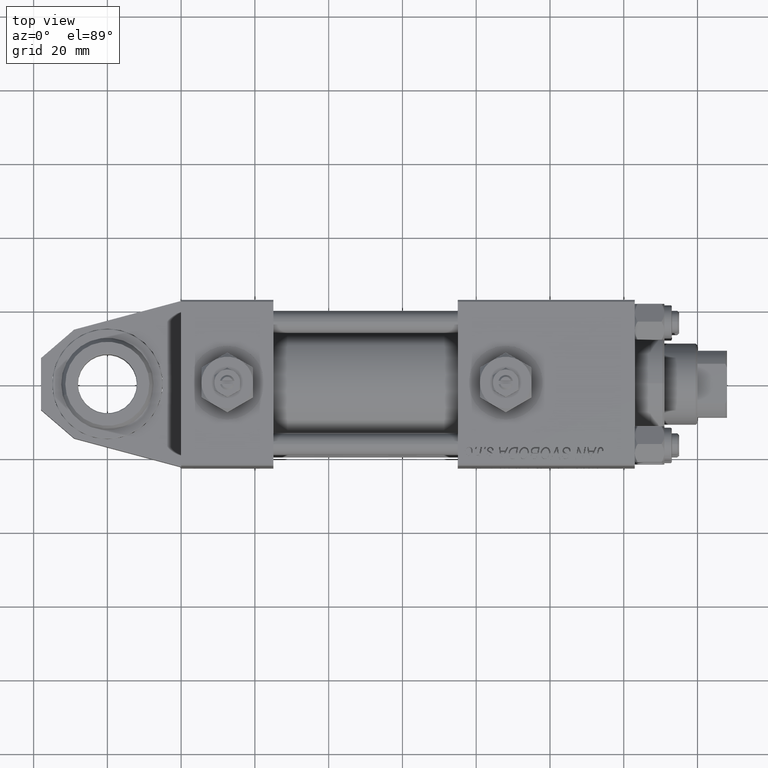
[diagram: clean part render]
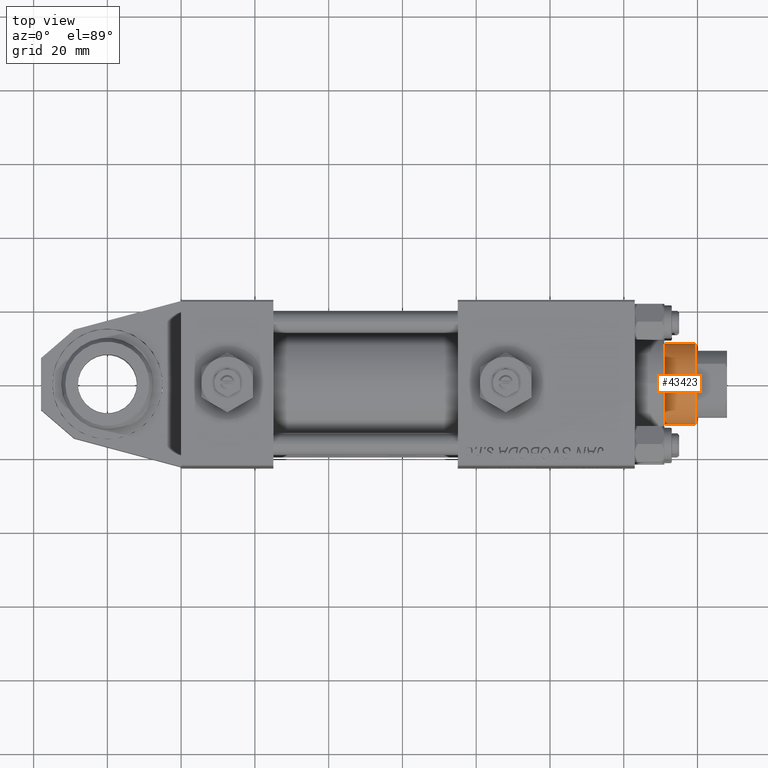
[diagram: same view with one face highlighted and labeled with its STEP entity id]
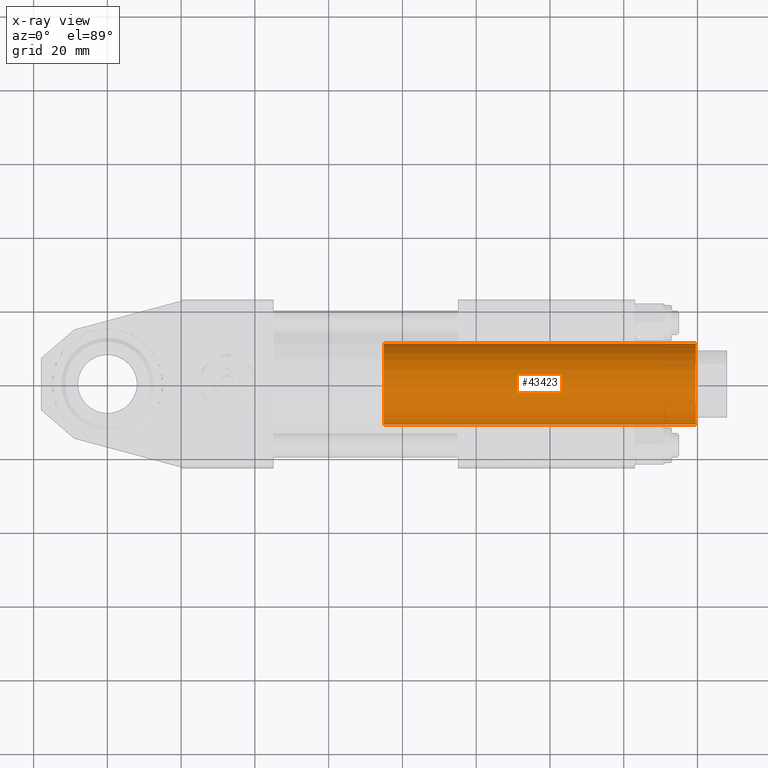
[diagram: x-ray of the same camera — body ghosted, the highlighted face saturated]
A machine part, top view. The second image highlights one B-rep face of the part: STEP entity #43423.
The next image is the same camera in x-ray: the body ghosted, the highlighted face saturated — about 1% of this face is hidden behind the body in this view.
In plain terms, the highlighted cylindrical surface (partial cylindrical patch) has radius 11 mm, axis along (-1, 0, 0).
Its self-contained STEP definition (entity closure, byte-faithful):
#620 = LINE ( 'NONE', #25411, #33642 ) ;
#1104 = CARTESIAN_POINT ( 'NONE',  ( 0.000000000000000000, 0.000000000000000000, 114.5000000000000142 ) ) ;
#1704 = DIRECTION ( 'NONE',  ( 0.000000000000000000, 0.000000000000000000, 1.000000000000000000 ) ) ;
#3395 = ORIENTED_EDGE ( 'NONE', *, *, #8907, .T. ) ;
#5084 = ORIENTED_EDGE ( 'NONE', *, *, #7651, .F. ) ;
#5822 = FACE_OUTER_BOUND ( 'NONE', #52146, .T. ) ;
#7651 = EDGE_CURVE ( 'NONE', #30615, #28637, #620, .T. ) ;
#8907 = EDGE_CURVE ( 'NONE', #35144, #46995, #31409, .T. ) ;
#13473 = DIRECTION ( 'NONE',  ( -0.000000000000000000, -0.000000000000000000, -1.000000000000000000 ) ) ;
#15270 = AXIS2_PLACEMENT_3D ( 'NONE', #38661, #1704, #34420 ) ;
#16702 = DIRECTION ( 'NONE',  ( -0.000000000000000000, -0.000000000000000000, -1.000000000000000000 ) ) ;
#17185 = DIRECTION ( 'NONE',  ( 1.000000000000000000, 0.000000000000000000, 0.000000000000000000 ) ) ;
#17695 = DIRECTION ( 'NONE',  ( 0.000000000000000000, 0.000000000000000000, -1.000000000000000000 ) ) ;
#20174 = AXIS2_PLACEMENT_3D ( 'NONE', #33783, #13473, #42517 ) ;
#20309 = CIRCLE ( 'NONE', #15270, 11.00000000000000000 ) ;
#23218 = CARTESIAN_POINT ( 'NONE',  ( -11.00000000000000000, 0.000000000000000000, 115.0000000000000000 ) ) ;
#25336 = VECTOR ( 'NONE', #51210, 1000.000000000000000 ) ;
#25411 = CARTESIAN_POINT ( 'NONE',  ( 11.00000000000000000, 1.347111479062088405E-15, 115.0000000000000000 ) ) ;
#26150 = CIRCLE ( 'NONE', #46399, 11.00000000000000000 ) ;
#28637 = VERTEX_POINT ( 'NONE', #30131 ) ;
#29321 = CYLINDRICAL_SURFACE ( 'NONE', #20174, 11.00000000000000000 ) ;
#29824 = ORIENTED_EDGE ( 'NONE', *, *, #46183, .T. ) ;
#30131 = CARTESIAN_POINT ( 'NONE',  ( 11.00000000000000000, 1.347111479062088405E-15, 30.00000000000000000 ) ) ;
#30615 = VERTEX_POINT ( 'NONE', #43955 ) ;
#31409 = LINE ( 'NONE', #23218, #25336 ) ;
#33642 = VECTOR ( 'NONE', #16702, 1000.000000000000000 ) ;
#33783 = CARTESIAN_POINT ( 'NONE',  ( 0.000000000000000000, 0.000000000000000000, 115.0000000000000000 ) ) ;
#34420 = DIRECTION ( 'NONE',  ( 1.000000000000000000, 0.000000000000000000, 0.000000000000000000 ) ) ;
#35144 = VERTEX_POINT ( 'NONE', #40927 ) ;
#38661 = CARTESIAN_POINT ( 'NONE',  ( 0.000000000000000000, 0.000000000000000000, 30.00000000000000000 ) ) ;
#40927 = CARTESIAN_POINT ( 'NONE',  ( -11.00000000000000000, 0.000000000000000000, 114.5000000000000142 ) ) ;
#42319 = ORIENTED_EDGE ( 'NONE', *, *, #48034, .T. ) ;
#42517 = DIRECTION ( 'NONE',  ( -1.000000000000000000, 0.000000000000000000, 0.000000000000000000 ) ) ;
#43423 = ADVANCED_FACE ( 'NONE', ( #5822 ), #29321, .T. ) ;
#43955 = CARTESIAN_POINT ( 'NONE',  ( 11.00000000000000000, 1.347111479062088405E-15, 114.5000000000000142 ) ) ;
#46183 = EDGE_CURVE ( 'NONE', #30615, #35144, #26150, .T. ) ;
#46399 = AXIS2_PLACEMENT_3D ( 'NONE', #1104, #17695, #17185 ) ;
#46995 = VERTEX_POINT ( 'NONE', #47546 ) ;
#47546 = CARTESIAN_POINT ( 'NONE',  ( -11.00000000000000000, 0.000000000000000000, 30.00000000000000000 ) ) ;
#48034 = EDGE_CURVE ( 'NONE', #46995, #28637, #20309, .T. ) ;
#51210 = DIRECTION ( 'NONE',  ( -0.000000000000000000, -0.000000000000000000, -1.000000000000000000 ) ) ;
#52146 = EDGE_LOOP ( 'NONE', ( #5084, #29824, #3395, #42319 ) ) ;